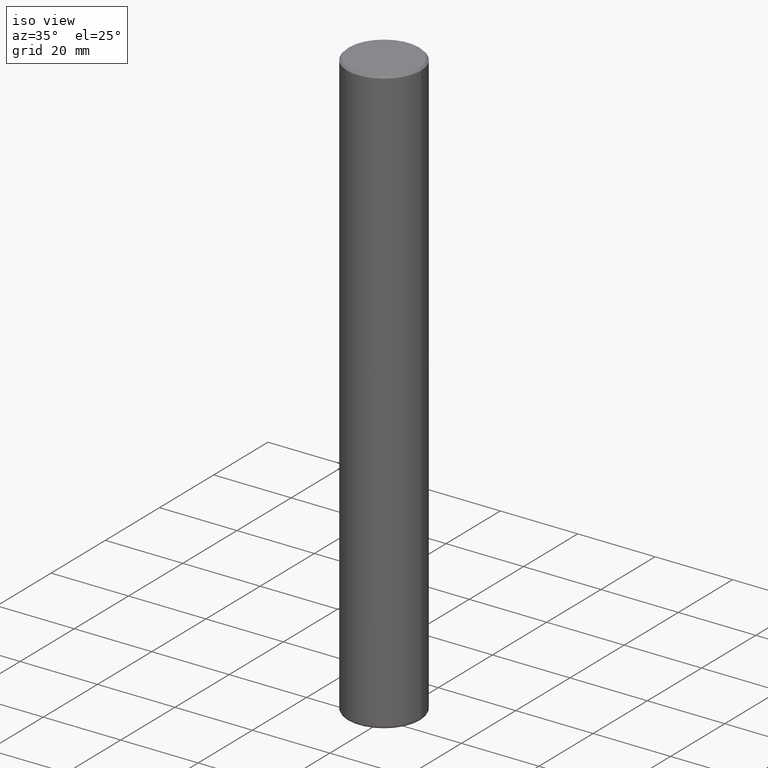
[diagram: clean part render]
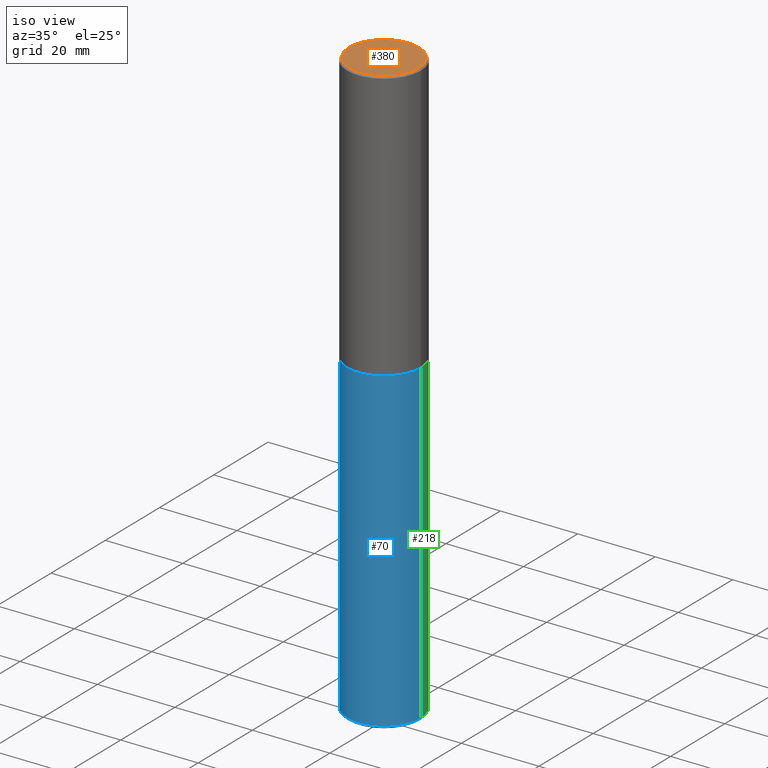
[diagram: same view with three faces highlighted in distinct colors, each labeled with its STEP entity id]
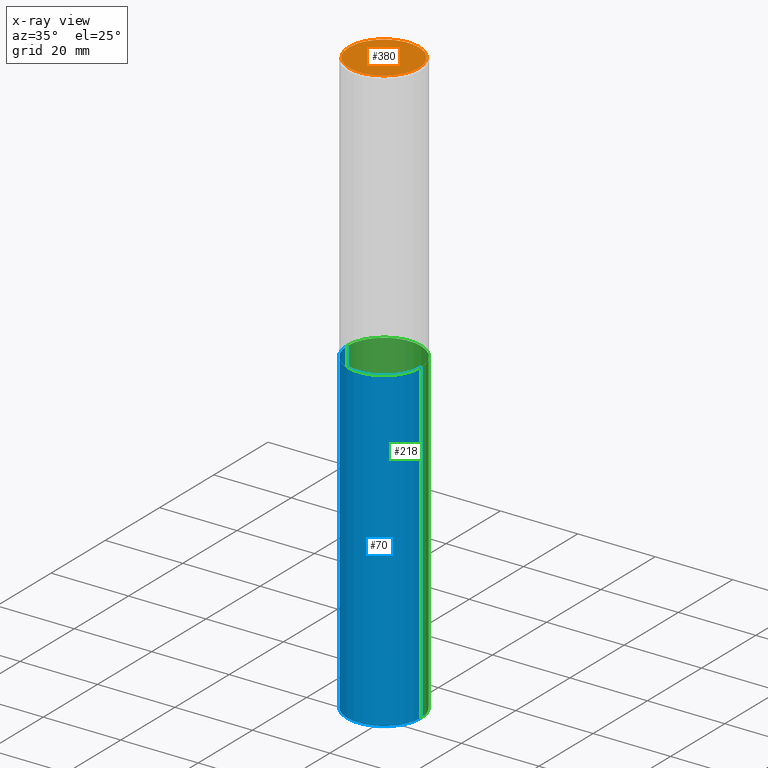
[diagram: x-ray of the same camera — body ghosted, the three highlighted faces saturated]
A machine part, iso view with three faces highlighted in distinct colors.
The next image is the same camera in x-ray (body ghosted, the three faces saturated) — at least one of them is partly hidden behind the body in this view.
Their STEP definitions:

[orange] entity #380 — the highlighted planar face has unit normal (0, -0, -1).
#2 = CARTESIAN_POINT ( 'NONE',  ( -0.3549999999999997602, 2.513866563967053491E-15, 4.268512490082953109E-18 ) ) ;
#3 = FACE_OUTER_BOUND ( 'NONE', #432, .T. ) ;
#13 = AXIS2_PLACEMENT_3D ( 'NONE', #69, #159, #275 ) ;
#33 = VERTEX_POINT ( 'NONE', #2 ) ;
#40 = CARTESIAN_POINT ( 'NONE',  ( 0.3549999999999997602, -2.538996582575039076E-15, 4.268512490117958041E-18 ) ) ;
#45 = VERTEX_POINT ( 'NONE', #40 ) ;
#46 = CARTESIAN_POINT ( 'NONE',  ( 2.478951750578623026E-15, 0.3549999999999997602, -1.237341619044265638E-15 ) ) ;
#69 = CARTESIAN_POINT ( 'NONE',  ( -1.043851414335219820E-46, 1.490343170380447200E-32, 4.268512490100411279E-18 ) ) ;
#82 = EDGE_CURVE ( 'NONE', #45, #33, #284, .T. ) ;
#122 = DIRECTION ( 'NONE',  ( 1.000000000000000000, -6.982962677686266711E-15, 4.876231632511991546E-29 ) ) ;
#159 = DIRECTION ( 'NONE',  ( -2.445468806185136597E-29, 3.491481338843145583E-15, 1.000000000000000000 ) ) ;
#172 = EDGE_CURVE ( 'NONE', #33, #45, #439, .T. ) ;
#213 = AXIS2_PLACEMENT_3D ( 'NONE', #46, #349, #392 ) ;
#238 = ORIENTED_EDGE ( 'NONE', *, *, #82, .T. ) ;
#247 = AXIS2_PLACEMENT_3D ( 'NONE', #364, #361, #122 ) ;
#272 = ORIENTED_EDGE ( 'NONE', *, *, #172, .T. ) ;
#275 = DIRECTION ( 'NONE',  ( 1.000000000000000000, -6.982962677686266711E-15, 4.876231632511991546E-29 ) ) ;
#284 = CIRCLE ( 'NONE', #13, 0.3549999999999997602 ) ;
#349 = DIRECTION ( 'NONE',  ( 2.438088387897960049E-29, -3.491481338843145188E-15, -1.000000000000000000 ) ) ;
#361 = DIRECTION ( 'NONE',  ( -2.445468806185136597E-29, 3.491481338843145583E-15, 1.000000000000000000 ) ) ;
#364 = CARTESIAN_POINT ( 'NONE',  ( -1.043851414335219820E-46, 1.490343170380447200E-32, 4.268512490100411279E-18 ) ) ;
#380 = ADVANCED_FACE ( 'NONE', ( #3 ), #390, .F. ) ;
#390 = PLANE ( 'NONE',  #213 ) ;
#392 = DIRECTION ( 'NONE',  ( -1.000000000000000000, 6.982962677686265922E-15, -4.876176775795935793E-29 ) ) ;
#432 = EDGE_LOOP ( 'NONE', ( #272, #238 ) ) ;
#439 = CIRCLE ( 'NONE', #247, 0.3549999999999997602 ) ;

[blue] entity #70 — the highlighted cylindrical surface (partial cylindrical patch) has radius 9.525 mm, axis along (-0, 0, 1).
#6 = DIRECTION ( 'NONE',  ( 1.000000000000000000, -6.982962677686266711E-15, 4.876176775795935793E-29 ) ) ;
#21 = CARTESIAN_POINT ( 'NONE',  ( -0.3749999999999997780, -1.817960833379320048E-14, -5.969999999999999751 ) ) ;
#35 = VECTOR ( 'NONE', #241, 39.37007874015748143 ) ;
#47 = EDGE_CURVE ( 'NONE', #195, #129, #342, .T. ) ;
#63 = EDGE_CURVE ( 'NONE', #306, #267, #442, .T. ) ;
#70 = ADVANCED_FACE ( 'NONE', ( #374 ), #135, .T. ) ;
#91 = AXIS2_PLACEMENT_3D ( 'NONE', #100, #411, #6 ) ;
#100 = CARTESIAN_POINT ( 'NONE',  ( 0.000000000000000000, 0.000000000000000000, 0.000000000000000000 ) ) ;
#101 = ORIENTED_EDGE ( 'NONE', *, *, #146, .F. ) ;
#129 = VERTEX_POINT ( 'NONE', #381 ) ;
#134 = DIRECTION ( 'NONE',  ( -2.445468806185136597E-29, 3.491481338843145583E-15, 1.000000000000000000 ) ) ;
#135 = CYLINDRICAL_SURFACE ( 'NONE', #91, 0.3749999999999998890 ) ;
#145 = CARTESIAN_POINT ( 'NONE',  ( 0.3749999999999997780, -2.346275459702592304E-14, -5.969999999999999751 ) ) ;
#146 = EDGE_CURVE ( 'NONE', #129, #267, #187, .T. ) ;
#187 = CIRCLE ( 'NONE', #332, 0.3750000000000000555 ) ;
#195 = VERTEX_POINT ( 'NONE', #21 ) ;
#210 = ORIENTED_EDGE ( 'NONE', *, *, #339, .T. ) ;
#236 = DIRECTION ( 'NONE',  ( -2.445468806185136877E-29, 3.491481338843145188E-15, 1.000000000000000000 ) ) ;
#237 = AXIS2_PLACEMENT_3D ( 'NONE', #417, #360, #425 ) ;
#241 = DIRECTION ( 'NONE',  ( -2.445468806185136877E-29, 3.491481338843145188E-15, 1.000000000000000000 ) ) ;
#267 = VERTEX_POINT ( 'NONE', #433 ) ;
#273 = DIRECTION ( 'NONE',  ( 1.000000000000000000, -6.982962677686266711E-15, 0.000000000000000000 ) ) ;
#306 = VERTEX_POINT ( 'NONE', #145 ) ;
#307 = VECTOR ( 'NONE', #236, 39.37007874015748143 ) ;
#311 = CARTESIAN_POINT ( 'NONE',  ( 6.725039217009125641E-29, -9.601573681818653015E-15, -2.750000000000000444 ) ) ;
#317 = CARTESIAN_POINT ( 'NONE',  ( 0.3749999999999998890, -2.618611004132349228E-15, 1.828566290923475362E-29 ) ) ;
#332 = AXIS2_PLACEMENT_3D ( 'NONE', #311, #134, #273 ) ;
#335 = ORIENTED_EDGE ( 'NONE', *, *, #63, .T. ) ;
#339 = EDGE_CURVE ( 'NONE', #195, #306, #422, .T. ) ;
#342 = LINE ( 'NONE', #406, #35 ) ;
#352 = ORIENTED_EDGE ( 'NONE', *, *, #47, .F. ) ;
#360 = DIRECTION ( 'NONE',  ( -2.445468806185136597E-29, 3.491481338843145583E-15, 1.000000000000000000 ) ) ;
#374 = FACE_OUTER_BOUND ( 'NONE', #436, .T. ) ;
#381 = CARTESIAN_POINT ( 'NONE',  ( -0.3750000000000000555, -1.255832337825574285E-14, -2.750000000000000444 ) ) ;
#406 = CARTESIAN_POINT ( 'NONE',  ( -0.3749999999999998890, 2.664535259100374908E-15, -1.844600658845589038E-29 ) ) ;
#411 = DIRECTION ( 'NONE',  ( -2.445468806185136597E-29, 3.491481338843145583E-15, 1.000000000000000000 ) ) ;
#417 = CARTESIAN_POINT ( 'NONE',  ( 1.459944877292526494E-28, -2.084414359289357934E-14, -5.969999999999999751 ) ) ;
#422 = CIRCLE ( 'NONE', #237, 0.3749999999999997780 ) ;
#425 = DIRECTION ( 'NONE',  ( 1.000000000000000000, -6.982962677686266711E-15, 0.000000000000000000 ) ) ;
#433 = CARTESIAN_POINT ( 'NONE',  ( 0.3750000000000000555, -1.222018468595100303E-14, -2.750000000000000444 ) ) ;
#436 = EDGE_LOOP ( 'NONE', ( #352, #210, #335, #101 ) ) ;
#442 = LINE ( 'NONE', #317, #307 ) ;

[green] entity #218 — the highlighted cylindrical surface (partial cylindrical patch) has radius 9.525 mm, axis along (-0, 0, 1).
#12 = DIRECTION ( 'NONE',  ( 1.000000000000000000, -6.982962677686266711E-15, 0.000000000000000000 ) ) ;
#16 = EDGE_CURVE ( 'NONE', #306, #195, #367, .T. ) ;
#21 = CARTESIAN_POINT ( 'NONE',  ( -0.3749999999999997780, -1.817960833379320048E-14, -5.969999999999999751 ) ) ;
#35 = VECTOR ( 'NONE', #241, 39.37007874015748143 ) ;
#38 = DIRECTION ( 'NONE',  ( 1.000000000000000000, -6.982962677686266711E-15, 0.000000000000000000 ) ) ;
#47 = EDGE_CURVE ( 'NONE', #195, #129, #342, .T. ) ;
#50 = CYLINDRICAL_SURFACE ( 'NONE', #416, 0.3749999999999998890 ) ;
#63 = EDGE_CURVE ( 'NONE', #306, #267, #442, .T. ) ;
#109 = AXIS2_PLACEMENT_3D ( 'NONE', #437, #199, #38 ) ;
#126 = ORIENTED_EDGE ( 'NONE', *, *, #16, .T. ) ;
#129 = VERTEX_POINT ( 'NONE', #381 ) ;
#145 = CARTESIAN_POINT ( 'NONE',  ( 0.3749999999999997780, -2.346275459702592304E-14, -5.969999999999999751 ) ) ;
#153 = DIRECTION ( 'NONE',  ( 1.000000000000000000, -6.982962677686266711E-15, 4.876176775795935793E-29 ) ) ;
#158 = FACE_OUTER_BOUND ( 'NONE', #300, .T. ) ;
#175 = ORIENTED_EDGE ( 'NONE', *, *, #47, .T. ) ;
#195 = VERTEX_POINT ( 'NONE', #21 ) ;
#199 = DIRECTION ( 'NONE',  ( -2.445468806185136597E-29, 3.491481338843145583E-15, 1.000000000000000000 ) ) ;
#202 = DIRECTION ( 'NONE',  ( -2.445468806185136597E-29, 3.491481338843145583E-15, 1.000000000000000000 ) ) ;
#205 = CARTESIAN_POINT ( 'NONE',  ( 6.725039217009125641E-29, -9.601573681818653015E-15, -2.750000000000000444 ) ) ;
#218 = ADVANCED_FACE ( 'NONE', ( #158 ), #50, .T. ) ;
#234 = ORIENTED_EDGE ( 'NONE', *, *, #370, .F. ) ;
#236 = DIRECTION ( 'NONE',  ( -2.445468806185136877E-29, 3.491481338843145188E-15, 1.000000000000000000 ) ) ;
#241 = DIRECTION ( 'NONE',  ( -2.445468806185136877E-29, 3.491481338843145188E-15, 1.000000000000000000 ) ) ;
#259 = CARTESIAN_POINT ( 'NONE',  ( 0.000000000000000000, 0.000000000000000000, 0.000000000000000000 ) ) ;
#267 = VERTEX_POINT ( 'NONE', #433 ) ;
#300 = EDGE_LOOP ( 'NONE', ( #126, #175, #234, #404 ) ) ;
#301 = CIRCLE ( 'NONE', #355, 0.3750000000000000555 ) ;
#306 = VERTEX_POINT ( 'NONE', #145 ) ;
#307 = VECTOR ( 'NONE', #236, 39.37007874015748143 ) ;
#317 = CARTESIAN_POINT ( 'NONE',  ( 0.3749999999999998890, -2.618611004132349228E-15, 1.828566290923475362E-29 ) ) ;
#336 = DIRECTION ( 'NONE',  ( -2.445468806185136597E-29, 3.491481338843145583E-15, 1.000000000000000000 ) ) ;
#342 = LINE ( 'NONE', #406, #35 ) ;
#355 = AXIS2_PLACEMENT_3D ( 'NONE', #205, #202, #12 ) ;
#367 = CIRCLE ( 'NONE', #109, 0.3749999999999997780 ) ;
#370 = EDGE_CURVE ( 'NONE', #267, #129, #301, .T. ) ;
#381 = CARTESIAN_POINT ( 'NONE',  ( -0.3750000000000000555, -1.255832337825574285E-14, -2.750000000000000444 ) ) ;
#404 = ORIENTED_EDGE ( 'NONE', *, *, #63, .F. ) ;
#406 = CARTESIAN_POINT ( 'NONE',  ( -0.3749999999999998890, 2.664535259100374908E-15, -1.844600658845589038E-29 ) ) ;
#416 = AXIS2_PLACEMENT_3D ( 'NONE', #259, #336, #153 ) ;
#433 = CARTESIAN_POINT ( 'NONE',  ( 0.3750000000000000555, -1.222018468595100303E-14, -2.750000000000000444 ) ) ;
#437 = CARTESIAN_POINT ( 'NONE',  ( 1.459944877292526494E-28, -2.084414359289357934E-14, -5.969999999999999751 ) ) ;
#442 = LINE ( 'NONE', #317, #307 ) ;